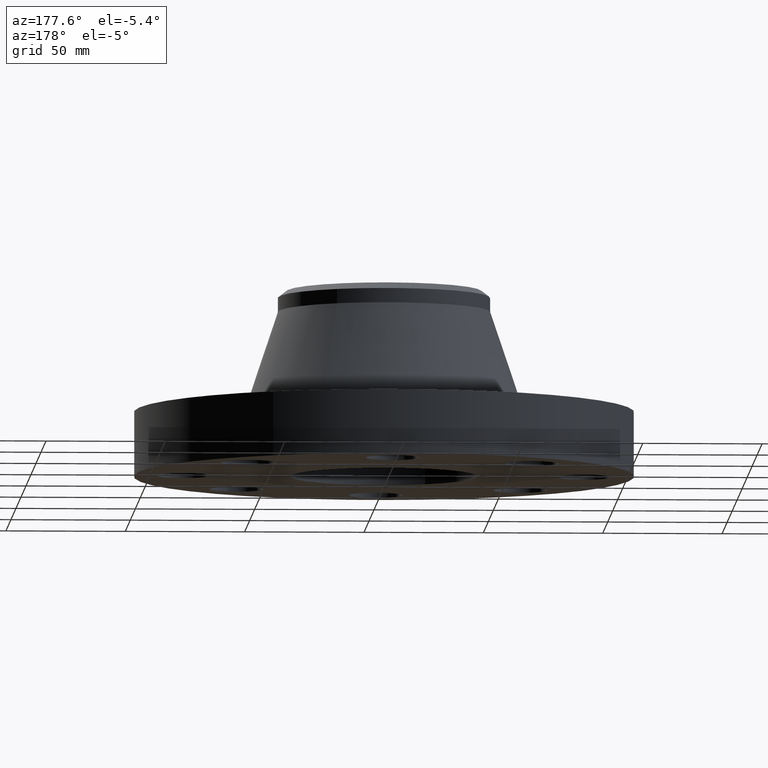
[diagram: clean part render]
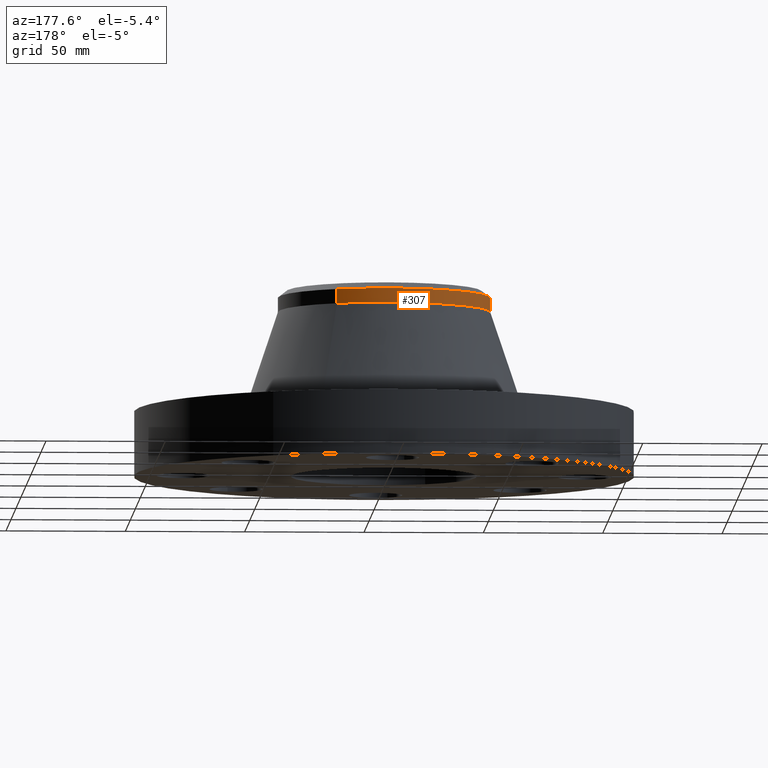
[diagram: same view with one face highlighted and labeled with its STEP entity id]
A machine part, auxiliary view. The second image highlights one B-rep face of the part: STEP entity #307.
In plain terms, the highlighted cylindrical surface (partial cylindrical patch) has radius 44.45 mm, axis along (0, 0, -1).
Its self-contained STEP definition (entity closure, byte-faithful):
#239=AXIS2_PLACEMENT_3D('Circle Axis2P3D',#237,#238,$) ;
#252=AXIS2_PLACEMENT_3D('Cylinder Axis2P3D',#249,#250,#251) ;
#290=AXIS2_PLACEMENT_3D('Circle Axis2P3D',#288,#289,$) ;
#297=AXIS2_PLACEMENT_3D('Circle Axis2P3D',#295,#296,$) ;
#215=CARTESIAN_POINT('Vertex',(0.838994692561,1.53576948331,2.71845634604)) ;
#222=CARTESIAN_POINT('Vertex',(-0.838994692561,-1.53576948331,2.71845634604)) ;
#237=CARTESIAN_POINT('Axis2P3D Location',(0.,0.,2.71845634604)) ;
#249=CARTESIAN_POINT('Axis2P3D Location',(0.,0.,1.53000000001)) ;
#254=CARTESIAN_POINT('Line Origine',(-0.838994692561,-1.53576948331,2.83656658226)) ;
#258=CARTESIAN_POINT('Vertex',(-0.838994692561,-1.53576948331,2.95467681848)) ;
#261=CARTESIAN_POINT('Line Origine',(0.838994692561,1.53576948331,2.83656658226)) ;
#265=CARTESIAN_POINT('Vertex',(0.838994692561,1.53576948331,2.95467681848)) ;
#288=CARTESIAN_POINT('Axis2P3D Location',(0.,0.,2.95467681848)) ;
#292=CARTESIAN_POINT('Vertex',(-0.838994692561,1.53576948331,2.95467681848)) ;
#295=CARTESIAN_POINT('Axis2P3D Location',(0.,0.,2.95467681848)) ;
#238=DIRECTION('Axis2P3D Direction',(0.,0.,-0.0393700787402)) ;
#250=DIRECTION('Axis2P3D Direction',(0.,0.,-0.0393700787402)) ;
#251=DIRECTION('Axis2P3D XDirection',(-0.0188750212049,-0.0345504945626,0.)) ;
#255=DIRECTION('Vector Direction',(0.,0.,-0.0393700787402)) ;
#262=DIRECTION('Vector Direction',(0.,0.,-0.0393700787402)) ;
#289=DIRECTION('Axis2P3D Direction',(0.,0.,-0.0393700787402)) ;
#296=DIRECTION('Axis2P3D Direction',(0.,0.,-0.0393700787402)) ;
#256=VECTOR('Line Direction',#255,0.0393700787402) ;
#263=VECTOR('Line Direction',#262,0.0393700787402) ;
#301=ORIENTED_EDGE('',*,*,#267,.F.) ;
#302=ORIENTED_EDGE('',*,*,#241,.F.) ;
#303=ORIENTED_EDGE('',*,*,#260,.T.) ;
#304=ORIENTED_EDGE('',*,*,#294,.F.) ;
#305=ORIENTED_EDGE('',*,*,#299,.T.) ;
#307=ADVANCED_FACE('PartBody',(#306),#253,.T.) ;
#240=CIRCLE('generated circle',#239,1.75000000001) ;
#291=CIRCLE('generated circle',#290,1.75000000001) ;
#298=CIRCLE('generated circle',#297,1.75000000001) ;
#253=CYLINDRICAL_SURFACE('generated cylinder',#252,1.75000000001) ;
#241=EDGE_CURVE('',#223,#216,#240,.T.) ;
#260=EDGE_CURVE('',#223,#259,#257,.F.) ;
#267=EDGE_CURVE('',#216,#266,#264,.F.) ;
#294=EDGE_CURVE('',#293,#259,#291,.F.) ;
#299=EDGE_CURVE('',#293,#266,#298,.T.) ;
#300=EDGE_LOOP('',(#301,#302,#303,#304,#305)) ;
#306=FACE_OUTER_BOUND('',#300,.T.) ;
#257=LINE('Line',#254,#256) ;
#264=LINE('Line',#261,#263) ;
#216=VERTEX_POINT('',#215) ;
#223=VERTEX_POINT('',#222) ;
#259=VERTEX_POINT('',#258) ;
#266=VERTEX_POINT('',#265) ;
#293=VERTEX_POINT('',#292) ;